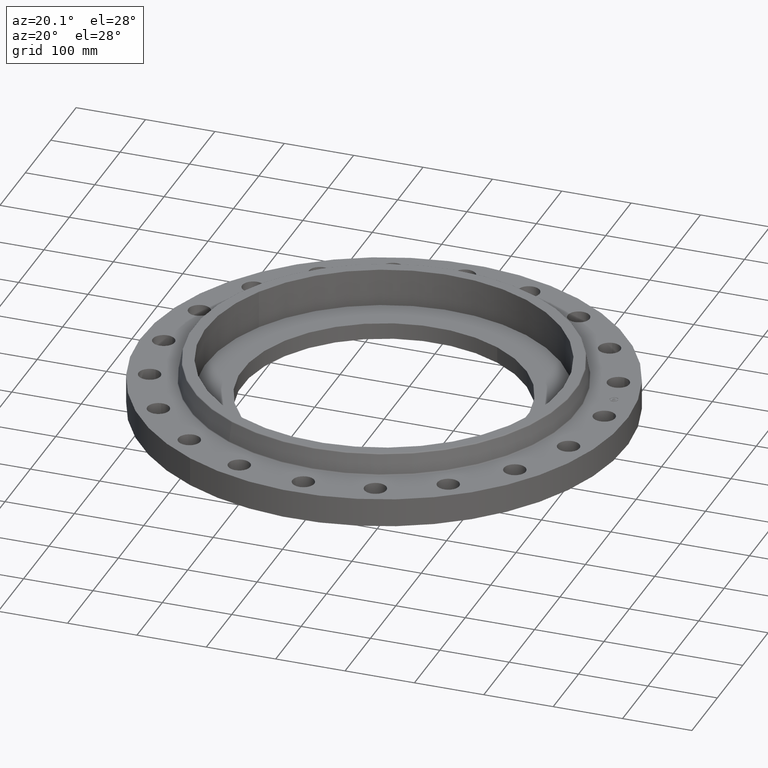
[diagram: clean part render]
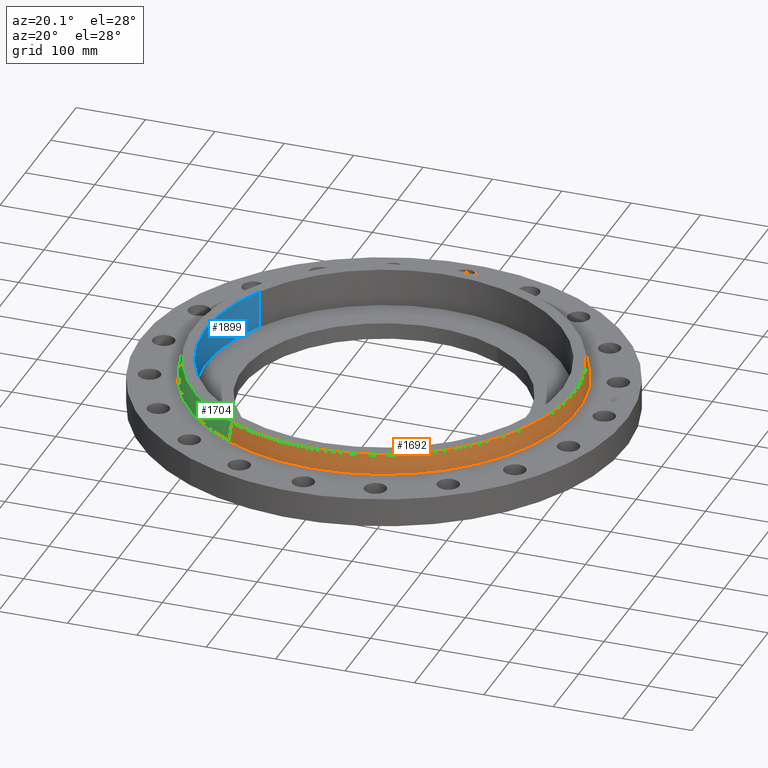
[diagram: same view with three faces highlighted in distinct colors, each labeled with its STEP entity id]
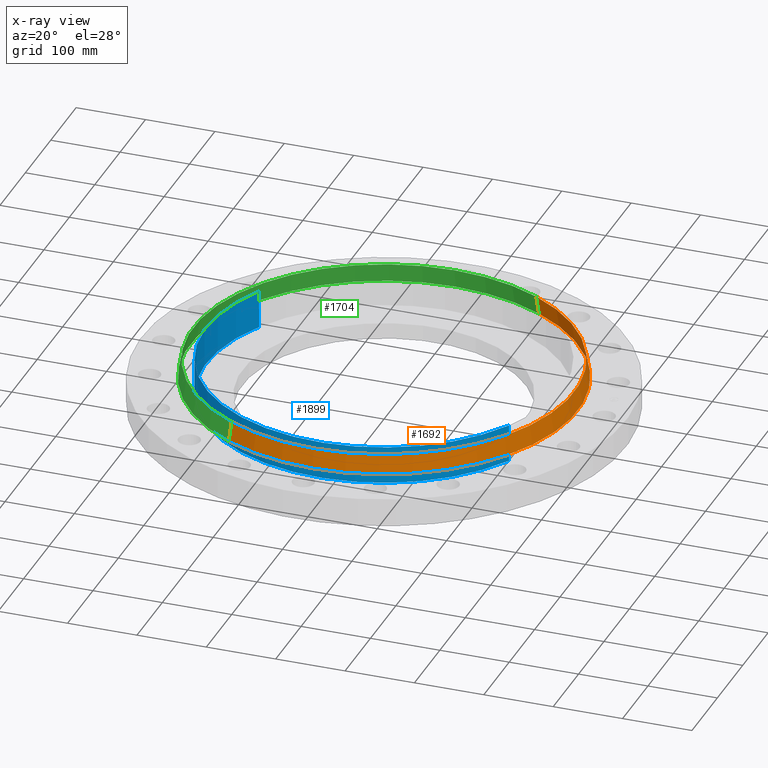
[diagram: x-ray of the same camera — body ghosted, the three highlighted faces saturated]
A machine part, auxiliary view with three faces highlighted in distinct colors.
The next image is the same camera in x-ray (body ghosted, the three faces saturated) — at least one of them is partly hidden behind the body in this view.
Their STEP definitions:

[orange] entity #1692 — the highlighted conical surface has half-angle 10 deg.
#1585=AXIS2_PLACEMENT_3D('Circle Axis2P3D',#1583,#1584,$) ;
#1665=AXIS2_PLACEMENT_3D('Cone Axis2P3D',#1662,#1663,#1664) ;
#1676=AXIS2_PLACEMENT_3D('Circle Axis2P3D',#1674,#1675,$) ;
#1580=CARTESIAN_POINT('Vertex',(5.26948955298,9.64573592642,1.66958110935)) ;
#1583=CARTESIAN_POINT('Axis2P3D Location',(0.,0.,1.66958110935)) ;
#1587=CARTESIAN_POINT('Vertex',(-5.26948955298,-9.64573592642,1.66958110935)) ;
#1662=CARTESIAN_POINT('Axis2P3D Location',(0.,0.,2.76041889067)) ;
#1667=CARTESIAN_POINT('Line Origine',(5.22338220834,9.56133699817,2.21500000001)) ;
#1671=CARTESIAN_POINT('Vertex',(5.1772748637,9.47693806992,2.76041889067)) ;
#1674=CARTESIAN_POINT('Axis2P3D Location',(0.,0.,2.76041889067)) ;
#1678=CARTESIAN_POINT('Vertex',(-5.1772748637,-9.47693806992,2.76041889067)) ;
#1681=CARTESIAN_POINT('Line Origine',(-5.22338220834,-9.56133699817,2.21500000001)) ;
#1584=DIRECTION('Axis2P3D Direction',(0.,0.,-0.0393700787402)) ;
#1663=DIRECTION('Axis2P3D Direction',(0.,0.,-0.0393700787402)) ;
#1664=DIRECTION('Axis2P3D XDirection',(-0.0188750212049,-0.0345504945626,0.)) ;
#1668=DIRECTION('Vector Direction',(0.00327761303565,0.00599963041829,-0.03877195878)) ;
#1675=DIRECTION('Axis2P3D Direction',(0.,0.,-0.0393700787402)) ;
#1682=DIRECTION('Vector Direction',(-0.00327761303565,-0.00599963041829,-0.03877195878)) ;
#1669=VECTOR('Line Direction',#1668,0.0393700787402) ;
#1683=VECTOR('Line Direction',#1682,0.0393700787402) ;
#1687=ORIENTED_EDGE('',*,*,#1589,.F.) ;
#1688=ORIENTED_EDGE('',*,*,#1673,.T.) ;
#1689=ORIENTED_EDGE('',*,*,#1680,.T.) ;
#1690=ORIENTED_EDGE('',*,*,#1685,.F.) ;
#1692=ADVANCED_FACE('PartBody',(#1691),#1666,.T.) ;
#1586=CIRCLE('generated circle',#1585,10.9912575127) ;
#1677=CIRCLE('generated circle',#1676,10.7989133803) ;
#1666=CONICAL_SURFACE('Cone',#1665,10.7989133803,0.174532925199) ;
#1589=EDGE_CURVE('',#1581,#1588,#1586,.T.) ;
#1673=EDGE_CURVE('',#1581,#1672,#1670,.F.) ;
#1680=EDGE_CURVE('',#1672,#1679,#1677,.T.) ;
#1685=EDGE_CURVE('',#1588,#1679,#1684,.F.) ;
#1686=EDGE_LOOP('',(#1687,#1688,#1689,#1690)) ;
#1691=FACE_OUTER_BOUND('',#1686,.T.) ;
#1670=LINE('Line',#1667,#1669) ;
#1684=LINE('Line',#1681,#1683) ;
#1581=VERTEX_POINT('',#1580) ;
#1588=VERTEX_POINT('',#1587) ;
#1672=VERTEX_POINT('',#1671) ;
#1679=VERTEX_POINT('',#1678) ;

[blue] entity #1899 — the highlighted cylindrical surface (partial cylindrical patch) has radius 256.54 mm, axis along (0, 0, -1).
#51=AXIS2_PLACEMENT_3D('Circle Axis2P3D',#49,#50,$) ;
#1834=AXIS2_PLACEMENT_3D('Circle Axis2P3D',#1832,#1833,$) ;
#1874=AXIS2_PLACEMENT_3D('Cylinder Axis2P3D',#1871,#1872,#1873) ;
#44=CARTESIAN_POINT('Vertex',(-8.86358387513,4.84219793992,0.680000000003)) ;
#46=CARTESIAN_POINT('Vertex',(8.86358387513,-4.84219793992,0.680000000003)) ;
#49=CARTESIAN_POINT('Axis2P3D Location',(1.04902962957E-016,-6.99353086378E-017,0.680000000003)) ;
#1827=CARTESIAN_POINT('Vertex',(-8.86358387513,4.84219793992,2.81000000001)) ;
#1829=CARTESIAN_POINT('Vertex',(8.86358387513,-4.84219793992,2.81000000001)) ;
#1832=CARTESIAN_POINT('Axis2P3D Location',(-2.79741234551E-016,0.,2.81000000001)) ;
#1871=CARTESIAN_POINT('Axis2P3D Location',(1.04902962957E-016,-6.99353086378E-017,2.80606299214)) ;
#1876=CARTESIAN_POINT('Line Origine',(-8.86358387513,4.84219793992,1.74500000001)) ;
#1881=CARTESIAN_POINT('Line Origine',(8.86358387513,-4.84219793992,1.74500000001)) ;
#50=DIRECTION('Axis2P3D Direction',(0.,0.,-0.0393700787402)) ;
#1833=DIRECTION('Axis2P3D Direction',(0.,0.,-0.0393700787402)) ;
#1872=DIRECTION('Axis2P3D Direction',(0.,0.,-0.0393700787402)) ;
#1873=DIRECTION('Axis2P3D XDirection',(0.0345504945626,-0.0188750212049,0.)) ;
#1877=DIRECTION('Vector Direction',(0.,0.,-0.0393700787402)) ;
#1882=DIRECTION('Vector Direction',(0.,0.,-0.0393700787402)) ;
#1878=VECTOR('Line Direction',#1877,0.0393700787402) ;
#1883=VECTOR('Line Direction',#1882,0.0393700787402) ;
#1894=ORIENTED_EDGE('',*,*,#1836,.F.) ;
#1895=ORIENTED_EDGE('',*,*,#1885,.F.) ;
#1896=ORIENTED_EDGE('',*,*,#53,.T.) ;
#1897=ORIENTED_EDGE('',*,*,#1880,.T.) ;
#1899=ADVANCED_FACE('PartBody',(#1898),#1875,.F.) ;
#52=CIRCLE('generated circle',#51,10.1) ;
#1835=CIRCLE('generated circle',#1834,10.1) ;
#1875=CYLINDRICAL_SURFACE('generated cylinder',#1874,10.1) ;
#53=EDGE_CURVE('',#47,#45,#52,.T.) ;
#1836=EDGE_CURVE('',#1830,#1828,#1835,.T.) ;
#1880=EDGE_CURVE('',#45,#1828,#1879,.F.) ;
#1885=EDGE_CURVE('',#47,#1830,#1884,.F.) ;
#1893=EDGE_LOOP('',(#1894,#1895,#1896,#1897)) ;
#1898=FACE_OUTER_BOUND('',#1893,.T.) ;
#1879=LINE('Line',#1876,#1878) ;
#1884=LINE('Line',#1881,#1883) ;
#45=VERTEX_POINT('',#44) ;
#47=VERTEX_POINT('',#46) ;
#1828=VERTEX_POINT('',#1827) ;
#1830=VERTEX_POINT('',#1829) ;

[green] entity #1704 — the highlighted conical surface has half-angle 10 deg.
#1609=AXIS2_PLACEMENT_3D('Circle Axis2P3D',#1607,#1608,$) ;
#1665=AXIS2_PLACEMENT_3D('Cone Axis2P3D',#1662,#1663,#1664) ;
#1695=AXIS2_PLACEMENT_3D('Circle Axis2P3D',#1693,#1694,$) ;
#1580=CARTESIAN_POINT('Vertex',(5.26948955298,9.64573592642,1.66958110935)) ;
#1587=CARTESIAN_POINT('Vertex',(-5.26948955298,-9.64573592642,1.66958110935)) ;
#1607=CARTESIAN_POINT('Axis2P3D Location',(0.,0.,1.66958110935)) ;
#1662=CARTESIAN_POINT('Axis2P3D Location',(0.,0.,2.76041889067)) ;
#1667=CARTESIAN_POINT('Line Origine',(5.22338220834,9.56133699817,2.21500000001)) ;
#1671=CARTESIAN_POINT('Vertex',(5.1772748637,9.47693806992,2.76041889067)) ;
#1678=CARTESIAN_POINT('Vertex',(-5.1772748637,-9.47693806992,2.76041889067)) ;
#1681=CARTESIAN_POINT('Line Origine',(-5.22338220834,-9.56133699817,2.21500000001)) ;
#1693=CARTESIAN_POINT('Axis2P3D Location',(0.,0.,2.76041889067)) ;
#1608=DIRECTION('Axis2P3D Direction',(0.,0.,-0.0393700787402)) ;
#1663=DIRECTION('Axis2P3D Direction',(0.,0.,-0.0393700787402)) ;
#1664=DIRECTION('Axis2P3D XDirection',(-0.0188750212049,-0.0345504945626,0.)) ;
#1668=DIRECTION('Vector Direction',(0.00327761303565,0.00599963041829,-0.03877195878)) ;
#1682=DIRECTION('Vector Direction',(-0.00327761303565,-0.00599963041829,-0.03877195878)) ;
#1694=DIRECTION('Axis2P3D Direction',(0.,0.,-0.0393700787402)) ;
#1669=VECTOR('Line Direction',#1668,0.0393700787402) ;
#1683=VECTOR('Line Direction',#1682,0.0393700787402) ;
#1699=ORIENTED_EDGE('',*,*,#1611,.F.) ;
#1700=ORIENTED_EDGE('',*,*,#1685,.T.) ;
#1701=ORIENTED_EDGE('',*,*,#1697,.T.) ;
#1702=ORIENTED_EDGE('',*,*,#1673,.F.) ;
#1704=ADVANCED_FACE('PartBody',(#1703),#1666,.T.) ;
#1610=CIRCLE('generated circle',#1609,10.9912575127) ;
#1696=CIRCLE('generated circle',#1695,10.7989133803) ;
#1666=CONICAL_SURFACE('Cone',#1665,10.7989133803,0.174532925199) ;
#1611=EDGE_CURVE('',#1588,#1581,#1610,.T.) ;
#1673=EDGE_CURVE('',#1581,#1672,#1670,.F.) ;
#1685=EDGE_CURVE('',#1588,#1679,#1684,.F.) ;
#1697=EDGE_CURVE('',#1679,#1672,#1696,.T.) ;
#1698=EDGE_LOOP('',(#1699,#1700,#1701,#1702)) ;
#1703=FACE_OUTER_BOUND('',#1698,.T.) ;
#1670=LINE('Line',#1667,#1669) ;
#1684=LINE('Line',#1681,#1683) ;
#1581=VERTEX_POINT('',#1580) ;
#1588=VERTEX_POINT('',#1587) ;
#1672=VERTEX_POINT('',#1671) ;
#1679=VERTEX_POINT('',#1678) ;